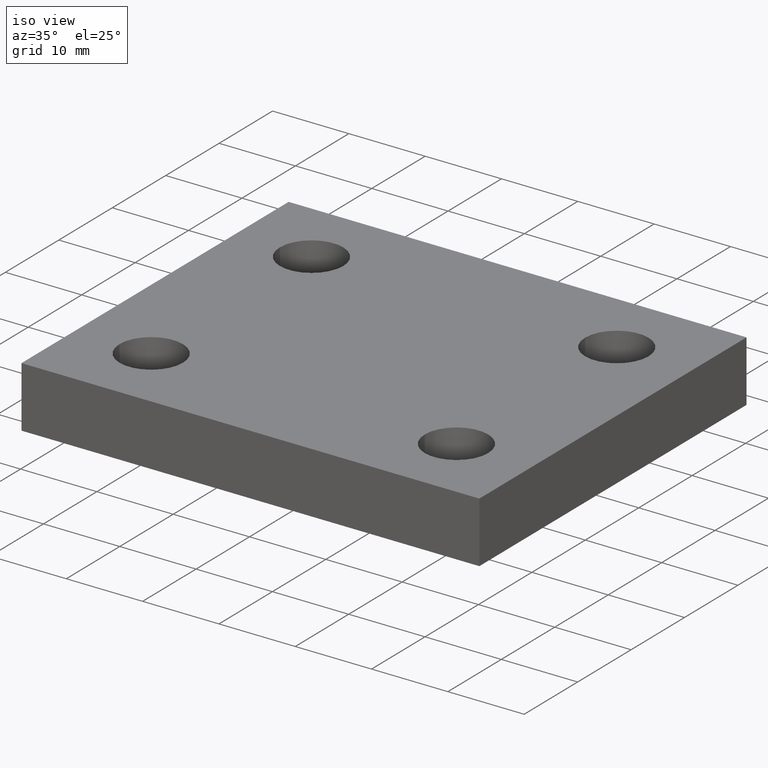
[diagram: clean part render]
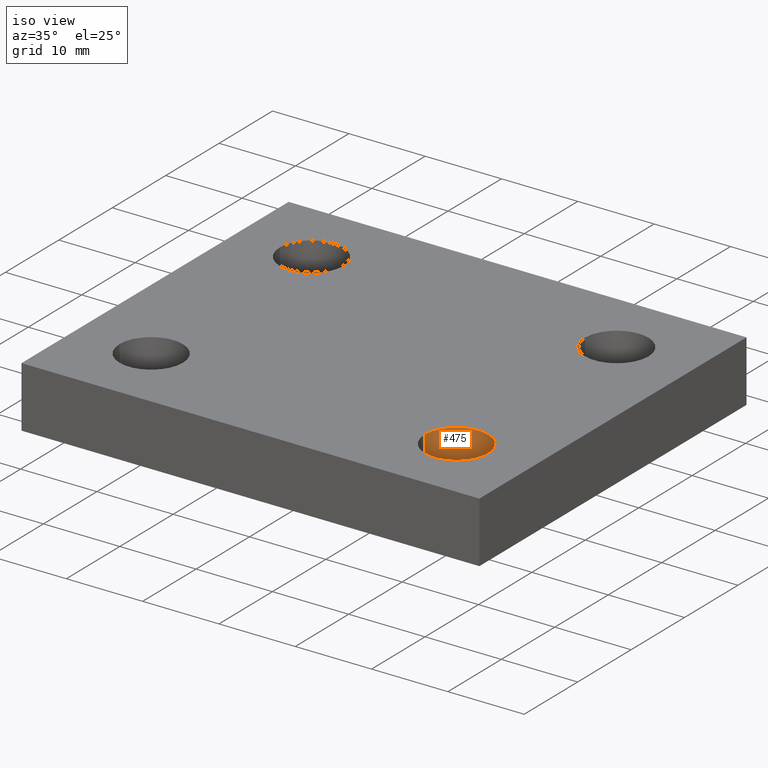
[diagram: same view with one face highlighted and labeled with its STEP entity id]
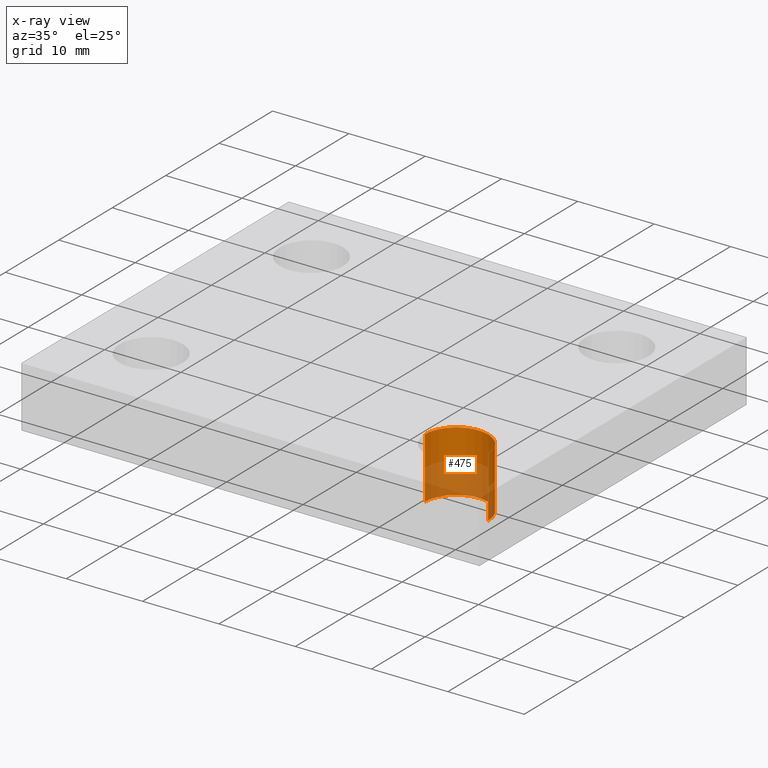
[diagram: x-ray of the same camera — body ghosted, the highlighted face saturated]
A machine part, iso view. The second image highlights one B-rep face of the part: STEP entity #475.
The next image is the same camera in x-ray: the body ghosted, the highlighted face saturated — about 50% of this face is hidden behind the body in this view.
In plain terms, the highlighted face is a freeform B-spline surface patch.
Its self-contained STEP definition (entity closure, byte-faithful):
#70=CARTESIAN_POINT('',(70.089752180801710,-44.027373815230888,0.0));
#71=VERTEX_POINT('',#70);
#72=CARTESIAN_POINT('',(70.089752180801710,-44.027373815230888,8.0));
#73=VERTEX_POINT('',#72);
#74=CARTESIAN_POINT('',(70.089752180801710,-44.027373815230888,0.0));
#75=DIRECTION('',(0.0,0.0,1.0));
#76=VECTOR('',#75,8.0);
#77=LINE('',#74,#76);
#78=EDGE_CURVE('',#71,#73,#77,.T.);
#80=CARTESIAN_POINT('',(61.789752180801720,-44.027373815230888,0.0));
#81=VERTEX_POINT('',#80);
#89=CARTESIAN_POINT('',(61.789752180801720,-44.027373815230888,8.0));
#90=VERTEX_POINT('',#89);
#91=CARTESIAN_POINT('',(61.789752180801720,-44.027373815230888,8.0));
#92=DIRECTION('',(0.0,0.0,-1.0));
#93=VECTOR('',#92,8.0);
#94=LINE('',#91,#93);
#95=EDGE_CURVE('',#90,#81,#94,.T.);
#431=CARTESIAN_POINT('',(61.789752180801720,-44.027373815230888,8.0));
#432=CARTESIAN_POINT('',(61.789752180801720,-44.027373815230888,0.0));
#433=CARTESIAN_POINT('',(61.789752180801727,-48.177373815230887,8.0));
#434=CARTESIAN_POINT('',(61.789752180801727,-48.177373815230887,0.0));
#435=CARTESIAN_POINT('',(65.939752180801719,-48.177373815230887,8.0));
#436=CARTESIAN_POINT('',(65.939752180801719,-48.177373815230887,0.0));
#437=CARTESIAN_POINT('',(70.089752180801710,-48.177373815230887,8.0));
#438=CARTESIAN_POINT('',(70.089752180801710,-48.177373815230887,0.0));
#439=CARTESIAN_POINT('',(70.089752180801725,-44.027373815230888,8.0));
#440=CARTESIAN_POINT('',(70.089752180801725,-44.027373815230888,0.0));
#441=CARTESIAN_POINT('',(70.089752180801710,-39.877373815230889,8.0));
#442=CARTESIAN_POINT('',(70.089752180801710,-39.877373815230889,0.0));
#443=CARTESIAN_POINT('',(65.939752180801719,-39.877373815230889,8.0));
#444=CARTESIAN_POINT('',(65.939752180801719,-39.877373815230889,0.0));
#445=CARTESIAN_POINT('',(61.789752180801727,-39.877373815230889,8.0));
#446=CARTESIAN_POINT('',(61.789752180801727,-39.877373815230889,0.0));
#447=CARTESIAN_POINT('',(61.789752180801720,-44.027373815230888,8.0));
#448=CARTESIAN_POINT('',(61.789752180801720,-44.027373815230888,0.0));
#456=(BOUNDED_SURFACE()B_SPLINE_SURFACE(1,2,((#431,#433,#435,#437,#439,#441,#443,#445,#447),(#432,#434,#436,#438,#440,#442,#444,#446,#448)),.UNSPECIFIED.,.F.,.T.,.U.)B_SPLINE_SURFACE_WITH_KNOTS((2,2),(3,2,2,2,3),(-0.963855421686747,0.963855421686747),(0.0,6.518804756198821,13.037609512397642,19.556414268596463,26.075219024795285),.UNSPECIFIED.)GEOMETRIC_REPRESENTATION_ITEM()RATIONAL_B_SPLINE_SURFACE(((1.0,0.707106781186548,1.0,0.707106781186548,1.0,0.707106781186548,1.0,0.707106781186548,1.0),(1.0,0.707106781186548,1.0,0.707106781186548,1.0,0.707106781186548,1.0,0.707106781186548,1.0)))REPRESENTATION_ITEM('')SURFACE());
#457=ORIENTED_EDGE('',*,*,#78,.T.);
#458=CARTESIAN_POINT('',(65.939752180801719,-44.027373815230888,8.0));
#459=DIRECTION('',(0.0,0.0,-1.0));
#460=DIRECTION('',(1.0,0.0,0.0));
#461=AXIS2_PLACEMENT_3D('',#458,#459,#460);
#462=CIRCLE('',#461,4.150000000000000);
#463=EDGE_CURVE('',#90,#73,#462,.T.);
#464=ORIENTED_EDGE('',*,*,#463,.F.);
#465=ORIENTED_EDGE('',*,*,#95,.T.);
#466=CARTESIAN_POINT('',(65.939752180801719,-44.027373815230888,0.0));
#467=DIRECTION('',(0.0,0.0,1.0));
#468=DIRECTION('',(1.0,0.0,0.0));
#469=AXIS2_PLACEMENT_3D('',#466,#467,#468);
#470=CIRCLE('',#469,4.150000000000000);
#471=EDGE_CURVE('',#71,#81,#470,.T.);
#472=ORIENTED_EDGE('',*,*,#471,.F.);
#473=EDGE_LOOP('',(#457,#464,#465,#472));
#474=FACE_OUTER_BOUND('',#473,.T.);
#475=ADVANCED_FACE('',(#474),#456,.F.);